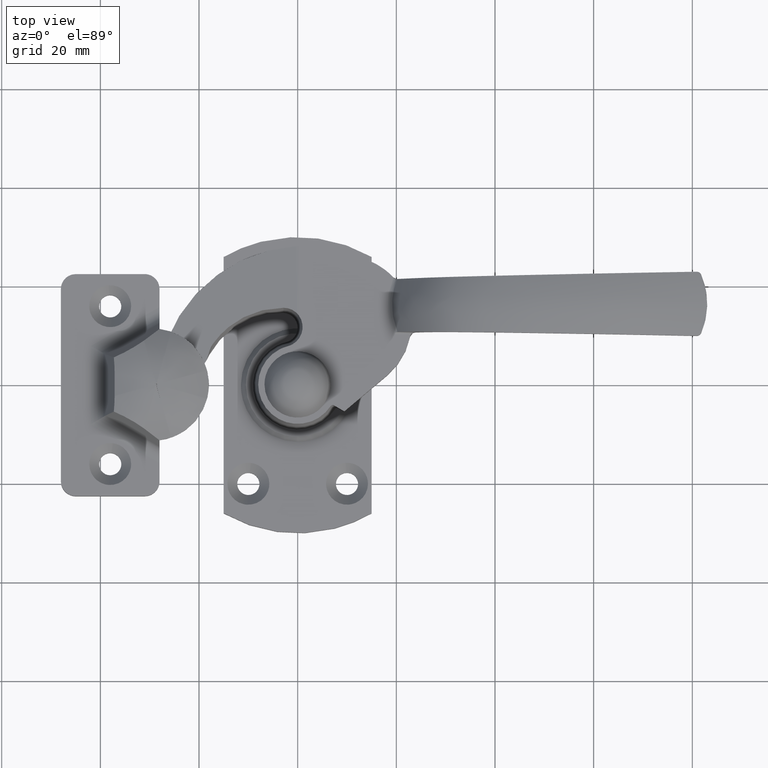
[diagram: clean part render]
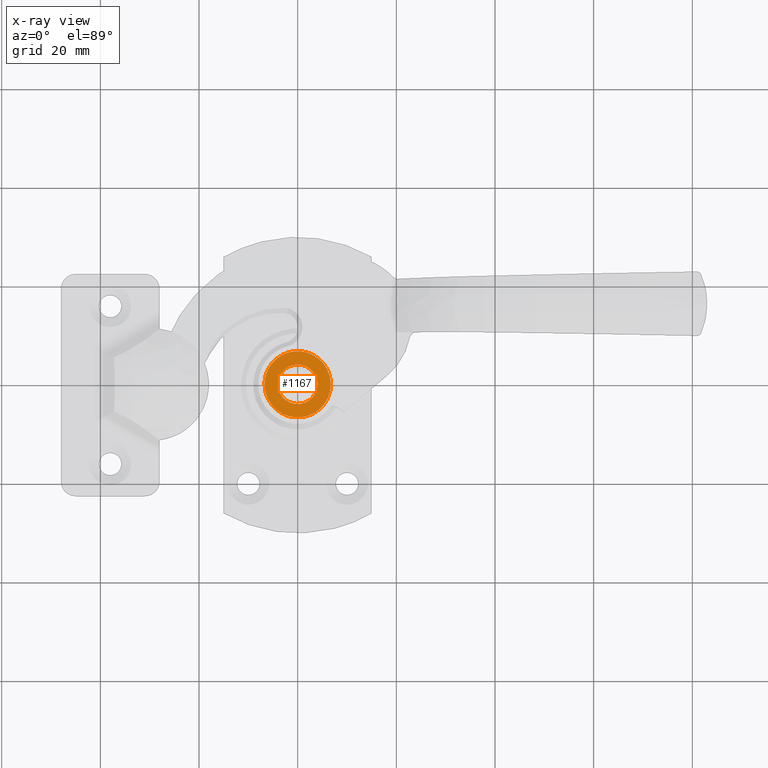
[diagram: x-ray — body ghosted, one internal face saturated and labeled with its STEP entity id]
A machine part, top view, then the same camera in x-ray: the body is ghosted and one INTERNAL B-rep face — a face not visible from any outside direction — is saturated and labeled: STEP entity #1167.
In plain terms, the highlighted face is a freeform B-spline surface patch.
Its self-contained STEP definition (entity closure, byte-faithful):
#961=CARTESIAN_POINT('',(0.313836383126465,3.987669334915584,13.400000000000000));
#962=VERTEX_POINT('',#961);
#968=CARTESIAN_POINT('',(4.0,0.0,13.400000000000000));
#969=VERTEX_POINT('',#968);
#970=CARTESIAN_POINT('',(4.0,0.0,13.400000000000000));
#971=CARTESIAN_POINT('',(4.000000000000000,3.697561966232725,13.400000000000000));
#972=CARTESIAN_POINT('',(0.313836383126465,3.987669334915584,13.399999999999997));
#980=(BOUNDED_CURVE()B_SPLINE_CURVE(2,(#970,#971,#972),.UNSPECIFIED.,.F.,.U.)B_SPLINE_CURVE_WITH_KNOTS((3,3),(0.0,0.236331300614275),.UNSPECIFIED.)CURVE()GEOMETRIC_REPRESENTATION_ITEM()RATIONAL_B_SPLINE_CURVE((1.0,0.723120658626862,0.969723356133223))REPRESENTATION_ITEM(''));
#981=EDGE_CURVE('',#969,#962,#980,.T.);
#983=CARTESIAN_POINT('',(-0.313836383126466,-3.987669334915584,13.400000000000000));
#984=VERTEX_POINT('',#983);
#985=CARTESIAN_POINT('',(-0.313836383126465,-3.987669334915584,13.399999999999997));
#986=CARTESIAN_POINT('',(-0.157160428246761,-4.000000000000001,13.400000000000002));
#987=CARTESIAN_POINT('',(0.0,-4.0,13.400000000000000));
#988=CARTESIAN_POINT('',(4.000000000000000,-4.000000000000000,13.400000000000000));
#989=CARTESIAN_POINT('',(4.0,0.0,13.400000000000000));
#997=(BOUNDED_CURVE()B_SPLINE_CURVE(2,(#985,#986,#987,#988,#989),.UNSPECIFIED.,.F.,.U.)B_SPLINE_CURVE_WITH_KNOTS((3,2,3),(0.736331300614275,0.750000000000000,1.0),.UNSPECIFIED.)CURVE()GEOMETRIC_REPRESENTATION_ITEM()RATIONAL_B_SPLINE_CURVE((0.969723356133223,0.983986122559686,1.0,0.707106781186548,1.0))REPRESENTATION_ITEM(''));
#998=EDGE_CURVE('',#984,#969,#997,.T.);
#1074=CARTESIAN_POINT('',(-4.0,0.0,13.400000000000000));
#1075=VERTEX_POINT('',#1074);
#1076=CARTESIAN_POINT('',(-4.0,0.0,13.400000000000000));
#1077=CARTESIAN_POINT('',(-4.000000000000001,-3.697561966232715,13.399999999999999));
#1078=CARTESIAN_POINT('',(-0.313836383126466,-3.987669334915583,13.400000000000009));
#1086=(BOUNDED_CURVE()B_SPLINE_CURVE(2,(#1076,#1077,#1078),.UNSPECIFIED.,.F.,.U.)B_SPLINE_CURVE_WITH_KNOTS((3,3),(0.500000000000000,0.736331300614274),.UNSPECIFIED.)CURVE()GEOMETRIC_REPRESENTATION_ITEM()RATIONAL_B_SPLINE_CURVE((1.0,0.723120658626862,0.969723356133223))REPRESENTATION_ITEM(''));
#1087=EDGE_CURVE('',#1075,#984,#1086,.T.);
#1089=CARTESIAN_POINT('',(0.313836383126465,3.987669334915584,13.399999999999997));
#1090=CARTESIAN_POINT('',(0.157160428246760,4.0,13.400000000000000));
#1091=CARTESIAN_POINT('',(0.0,4.0,13.400000000000000));
#1092=CARTESIAN_POINT('',(-4.000000000000000,4.000000000000000,13.400000000000000));
#1093=CARTESIAN_POINT('',(-4.0,0.0,13.400000000000000));
#1101=(BOUNDED_CURVE()B_SPLINE_CURVE(2,(#1089,#1090,#1091,#1092,#1093),.UNSPECIFIED.,.F.,.U.)B_SPLINE_CURVE_WITH_KNOTS((3,2,3),(0.236331300614275,0.250000000000000,0.500000000000000),.UNSPECIFIED.)CURVE()GEOMETRIC_REPRESENTATION_ITEM()RATIONAL_B_SPLINE_CURVE((0.969723356133223,0.983986122559686,1.0,0.707106781186548,1.0))REPRESENTATION_ITEM(''));
#1102=EDGE_CURVE('',#962,#1075,#1101,.T.);
#1120=CARTESIAN_POINT('',(7.398002749870891,7.398002749870688,13.400000000000000));
#1121=CARTESIAN_POINT('',(-7.398002268784969,7.398002749870688,13.400000000000000));
#1122=CARTESIAN_POINT('',(7.398002749870891,-7.398002268784767,13.400000000000000));
#1123=CARTESIAN_POINT('',(-7.398002268784969,-7.398002268784767,13.400000000000000));
#1124=B_SPLINE_SURFACE_WITH_KNOTS('',1,1,((#1120,#1122),(#1121,#1123)),.UNSPECIFIED.,.F.,.F.,.U.,(2,2),(2,2),(0.0,14.796005018655860),(0.0,14.796005018655460),.UNSPECIFIED.);
#1125=CARTESIAN_POINT('',(-6.726068688320090,0.0,13.400000000000000));
#1126=VERTEX_POINT('',#1125);
#1127=CARTESIAN_POINT('',(6.726068688320090,0.0,13.400000000000000));
#1128=VERTEX_POINT('',#1127);
#1129=CARTESIAN_POINT('',(-6.726068688320090,0.0,13.400000000000000));
#1130=CARTESIAN_POINT('',(-6.726068688320090,-6.726068688320090,13.400000000000000));
#1131=CARTESIAN_POINT('',(0.0,-6.726068688320090,13.400000000000000));
#1132=CARTESIAN_POINT('',(6.726068688320090,-6.726068688320090,13.400000000000000));
#1133=CARTESIAN_POINT('',(6.726068688320090,0.0,13.400000000000000));
#1141=(BOUNDED_CURVE()B_SPLINE_CURVE(2,(#1129,#1130,#1131,#1132,#1133),.UNSPECIFIED.,.F.,.U.)B_SPLINE_CURVE_WITH_KNOTS((3,2,3),(0.500000000000000,0.750000000000000,1.0),.UNSPECIFIED.)CURVE()GEOMETRIC_REPRESENTATION_ITEM()RATIONAL_B_SPLINE_CURVE((1.0,0.707106781186548,1.0,0.707106781186548,1.0))REPRESENTATION_ITEM(''));
#1142=EDGE_CURVE('',#1126,#1128,#1141,.T.);
#1143=ORIENTED_EDGE('',*,*,#1142,.F.);
#1144=CARTESIAN_POINT('',(6.726068688320090,0.0,13.400000000000000));
#1145=CARTESIAN_POINT('',(6.726068688320090,6.726068688320090,13.400000000000000));
#1146=CARTESIAN_POINT('',(0.0,6.726068688320090,13.400000000000000));
#1147=CARTESIAN_POINT('',(-6.726068688320090,6.726068688320090,13.400000000000000));
#1148=CARTESIAN_POINT('',(-6.726068688320090,0.0,13.400000000000000));
#1156=(BOUNDED_CURVE()B_SPLINE_CURVE(2,(#1144,#1145,#1146,#1147,#1148),.UNSPECIFIED.,.F.,.U.)B_SPLINE_CURVE_WITH_KNOTS((3,2,3),(0.0,0.250000000000000,0.500000000000000),.UNSPECIFIED.)CURVE()GEOMETRIC_REPRESENTATION_ITEM()RATIONAL_B_SPLINE_CURVE((1.0,0.707106781186548,1.0,0.707106781186548,1.0))REPRESENTATION_ITEM(''));
#1157=EDGE_CURVE('',#1128,#1126,#1156,.T.);
#1158=ORIENTED_EDGE('',*,*,#1157,.F.);
#1159=EDGE_LOOP('',(#1143,#1158));
#1160=FACE_OUTER_BOUND('',#1159,.T.);
#1161=ORIENTED_EDGE('',*,*,#1087,.T.);
#1162=ORIENTED_EDGE('',*,*,#998,.T.);
#1163=ORIENTED_EDGE('',*,*,#981,.T.);
#1164=ORIENTED_EDGE('',*,*,#1102,.T.);
#1165=EDGE_LOOP('',(#1161,#1162,#1163,#1164));
#1166=FACE_BOUND('',#1165,.T.);
#1167=ADVANCED_FACE('',(#1160,#1166),#1124,.F.);